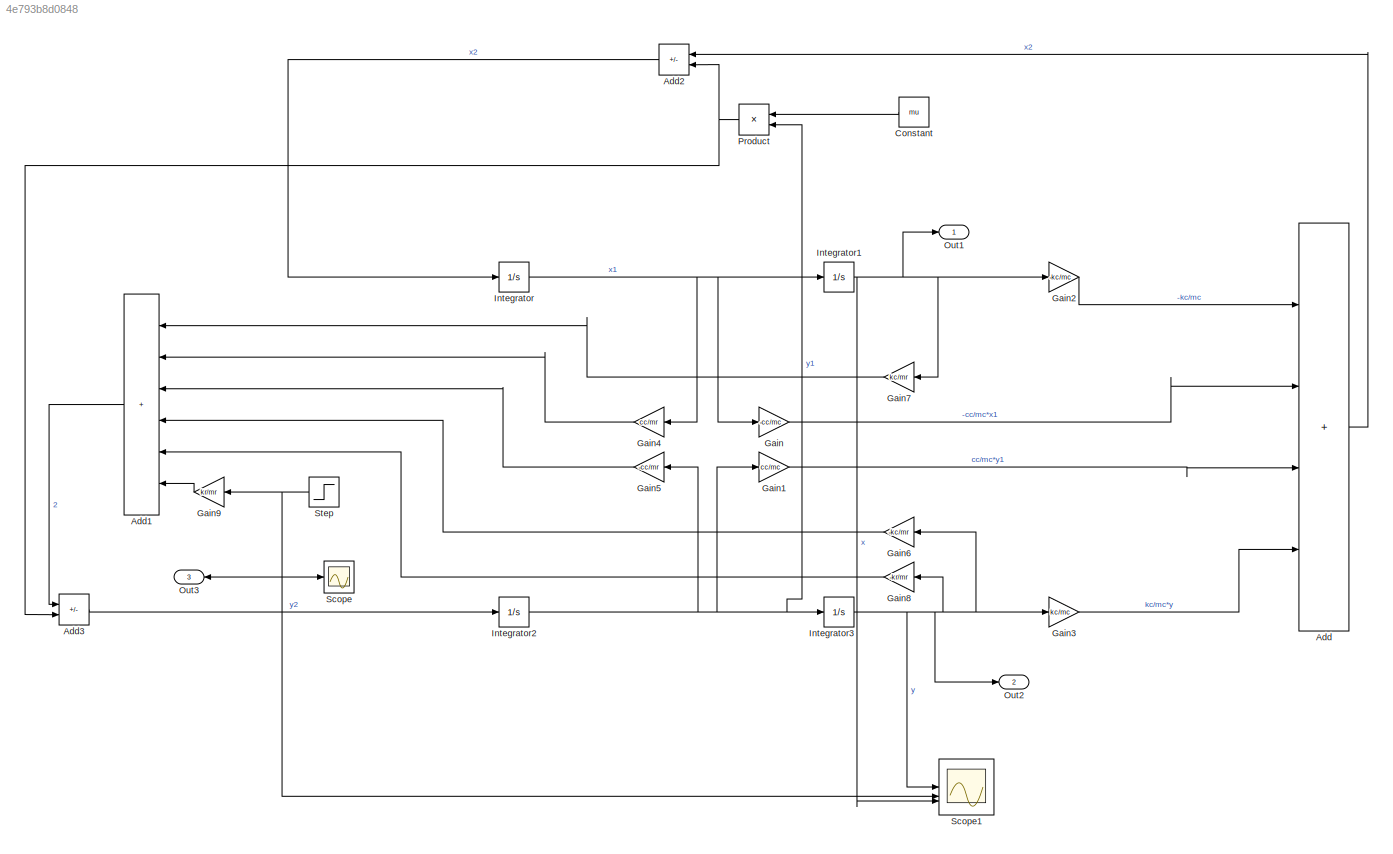
MODEL slx_4e793b8d0848
KIND model
CONFIG AbsTol = auto
CONFIG EnableMultiTasking = off
CONFIG FixedStep = 1
CONFIG MaxStep = auto
CONFIG MinStep = auto
CONFIG RelTol = 1e-3
CONFIG SampleTimeConstraint = Unconstrained
CONFIG SolverName = ode45
CONFIG StartTime = 0
CONFIG StopTime = 20
BLOCK [Sum] Add
  IconShape = rectangular
  Inputs = ++++
BLOCK [Sum] Add1
  IconShape = rectangular
  Inputs = ++++++
BLOCK [Sum] Add2
  IconShape = rectangular
  Inputs = +-
BLOCK [Sum] Add3
  IconShape = rectangular
  Inputs = +-
BLOCK [Constant] Constant
  Value = mu
BLOCK [Gain] Gain
  Gain = -cc/mc
BLOCK [Gain] Gain1
  Gain = cc/mc
BLOCK [Gain] Gain2
  Gain = -kc/mc
BLOCK [Gain] Gain3
  Gain = kc/mc
BLOCK [Gain] Gain4
  Gain = cc/mr
BLOCK [Gain] Gain5
  Gain = -cc/mr
BLOCK [Gain] Gain6
  Gain = -kc/mr
BLOCK [Gain] Gain7
  Gain = kc/mr
BLOCK [Gain] Gain8
  Gain = -kr/mr
BLOCK [Gain] Gain9
  Gain = kr/mr
BLOCK [Integrator] Integrator
BLOCK [Integrator] Integrator1
BLOCK [Integrator] Integrator2
BLOCK [Integrator] Integrator3
BLOCK [Outport] Out1
BLOCK [Outport] Out2
  Port = 2
BLOCK [Outport] Out3
  Port = 3
BLOCK [Product] Product
BLOCK [Scope] Scope
  Floating = off
  NumInputPorts = 1
  ScopeSpecificationString = Simulink.scopes.TimeScopeBlockCfg('CurrentConfiguration', extmgr.ConfigurationSet(extmgr.Configuration('Core','General UI',true),extmgr.Configuration('Core','Source UI',true),extmgr.Configuration('Sources','WiredSimulink',true,'DataLoggingVariableName','ScopeData1'),extmgr.Configuration('Visuals','Time Domain',true,'SerializedDisplays',{struct('MinYLimReal','-1.67463','MaxYLimReal','1.53474','YLab...<+1372ch>
BLOCK [Scope] Scope1
  Floating = off
  NumInputPorts = 3
  ScopeSpecificationString = Simulink.scopes.TimeScopeBlockCfg('CurrentConfiguration', extmgr.ConfigurationSet(extmgr.Configuration('Core','General UI',true),extmgr.Configuration('Core','Source UI',true),extmgr.Configuration('Sources','WiredSimulink',true,'DataLoggingVariableName','ScopeData1'),extmgr.Configuration('Visuals','Time Domain',true,'SerializedDisplays',{struct('MinYLimReal','406.85089','MaxYLimReal','415.14351','Y...<+1467ch>
BLOCK [Step] Step
  SampleTime = 0
LINE Add1:1 -> Add3:1
LINE Add2:1 -> Integrator:1
LINE Add3:1 -> Integrator2:1
LINE Add:1 -> Add2:1
LINE Constant:1 -> Product:1
LINE Gain1:1 -> Add:3
LINE Gain2:1 -> Add:1
LINE Gain3:1 -> Add:4
LINE Gain4:1 -> Add1:2
LINE Gain5:1 -> Add1:3
LINE Gain6:1 -> Add1:4
LINE Gain7:1 -> Add1:1
LINE Gain8:1 -> Add1:5
LINE Gain9:1 -> Add1:6
LINE Gain:1 -> Add:2
NET Integrator1:1 -> Gain2:1, Gain7:1, Out1:1, Scope1:3
NET Integrator2:1 -> Gain1:1, Gain5:1, Integrator3:1, Product:2
NET Integrator3:1 -> Gain3:1, Gain6:1, Gain8:1, Out2:1, Scope1:1
NET Integrator:1 -> Gain4:1, Gain:1, Integrator1:1
NET Product:1 -> Add2:2, Add3:2
NET Step:1 -> Gain9:1, Out3:1, Scope1:2, Scope:1
note: NET lines group one-source signal fan-out (src -> all destinations, sorted); 1:1 wires keep LINE
